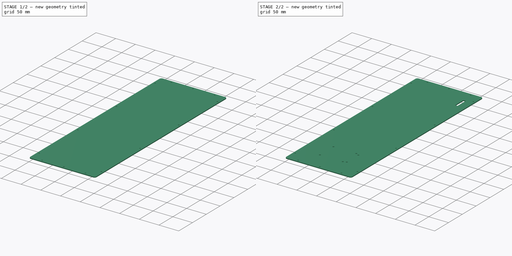
[diagram: build sequence overview — one tinted view per stage of 2, left to right]
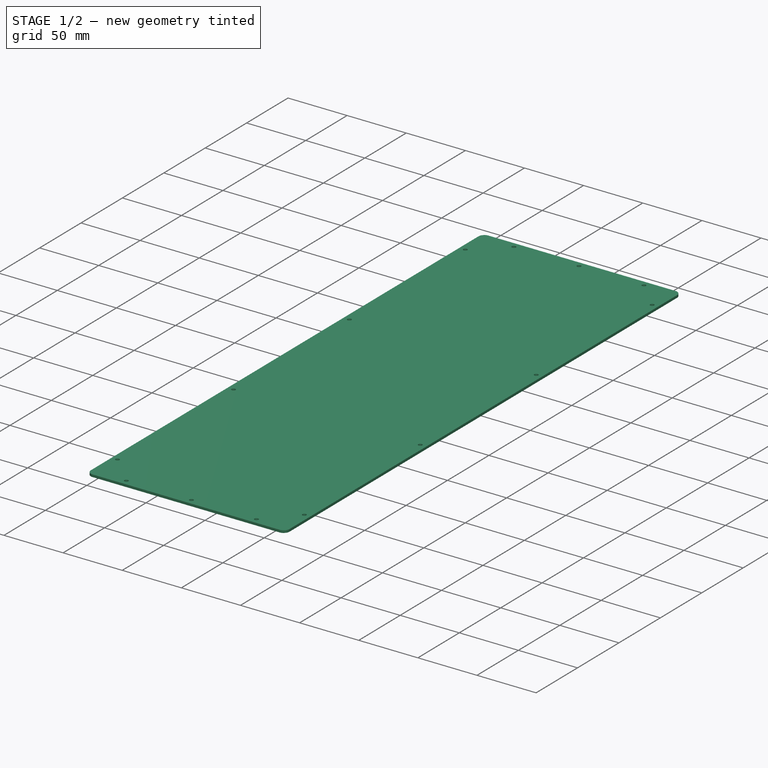
[diagram: stage 1 of 2 — iso view after this stage's code; geometry added in this stage tinted green]
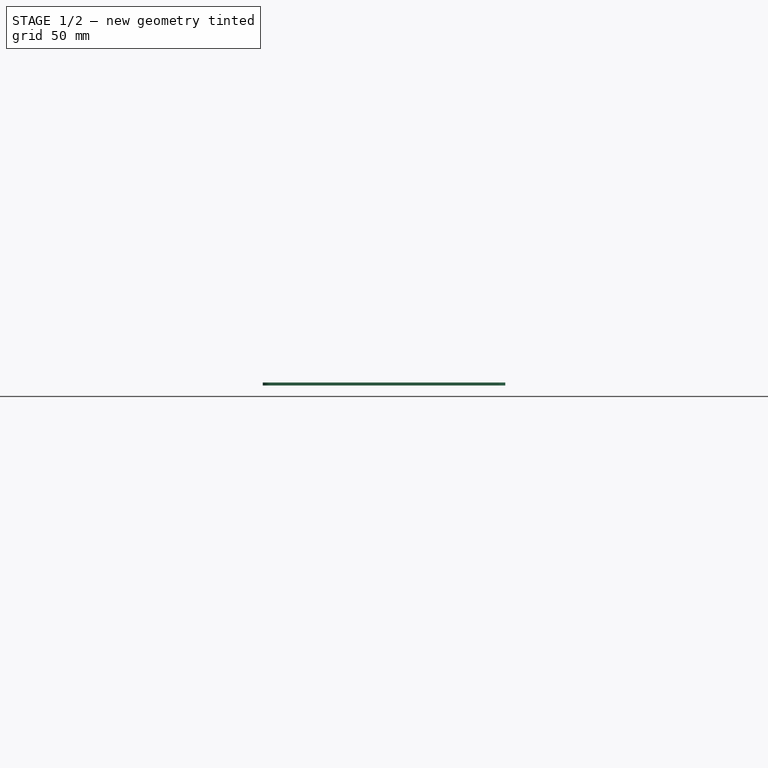
[diagram: stage 1 of 2 — front view after this stage's code; geometry added in this stage tinted green]
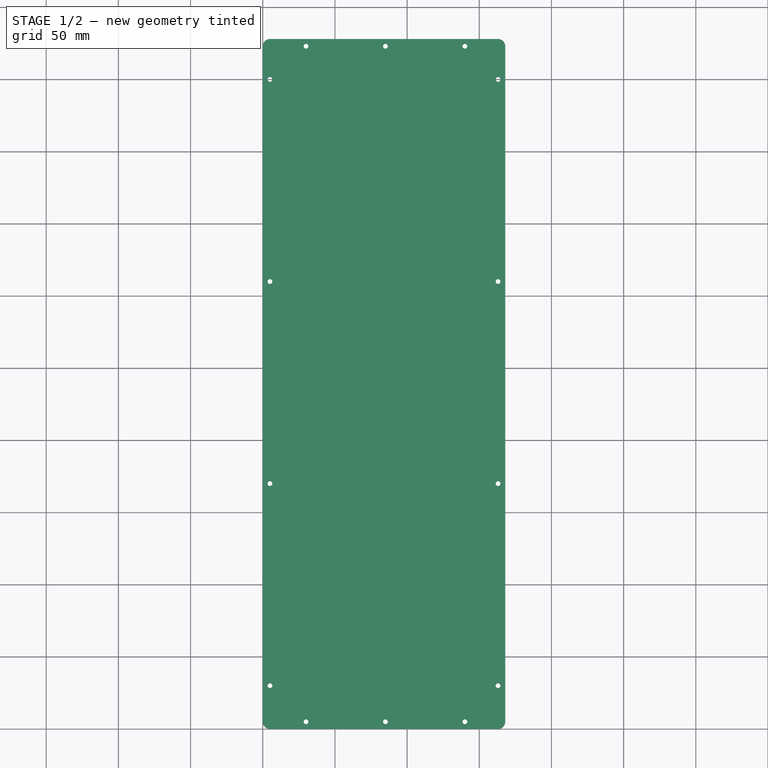
[diagram: stage 1 of 2 — top view after this stage's code; geometry added in this stage tinted green]
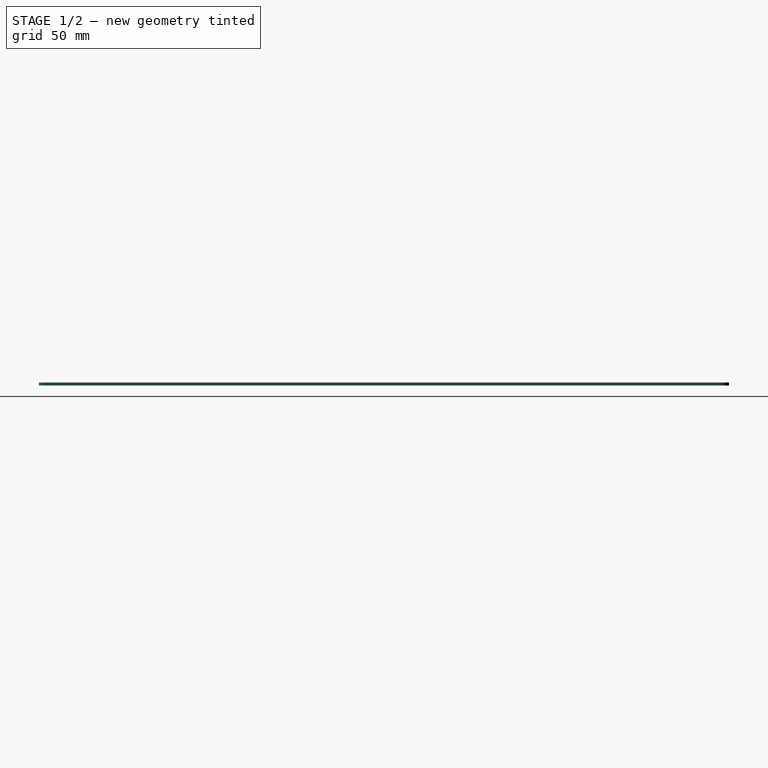
[diagram: stage 1 of 2 — right view after this stage's code; geometry added in this stage tinted green]
FCSTD DOCUMENT  (FreeCAD 0.16R5861 (Git))
Label: electronics_cover_v04.1
License: All rights reserved
LicenseURL: http://en.wikipedia.org/wiki/All_rights_reserved
objects: Drawing::FeatureView×57, Sketcher::SketchObject×4, PartDesign::Pocket×3, Drawing::FeatureViewPart×2, PartDesign::Pad×1, Drawing::FeaturePage×1
note: 12 computed .brp shape members not serialized (recipe doc carries the construction recipe); baked Part::Feature solids carry a one-line shape summary decoded from their .brp

FEATURE [Sketcher::SketchObject] Sketch
  sketch-geometry (8):
    g0: LineSegment StartX=5 StartY=478 StartZ=0 EndX=163 EndY=478 EndZ=0
    g1: LineSegment StartX=168 StartY=473 StartZ=0 EndX=168 EndY=5 EndZ=0
    g2: LineSegment StartX=163 StartY=0 StartZ=0 EndX=5 EndY=0 EndZ=0
    g3: LineSegment StartX=0 StartY=5 StartZ=0 EndX=0 EndY=473 EndZ=0
    g4: ArcOfCircle CenterX=5 CenterY=473 CenterZ=0 NormalX=0 NormalY=0 NormalZ=1 Radius=5 StartAngle=1.5708 EndAngle=3.14159
    g5: ArcOfCircle CenterX=163 CenterY=473 CenterZ=0 NormalX=0 NormalY=0 NormalZ=1 Radius=5 StartAngle=0 EndAngle=1.5708
    g6: ArcOfCircle CenterX=163 CenterY=5 CenterZ=0 NormalX=0 NormalY=0 NormalZ=1 Radius=5 StartAngle=4.71239 EndAngle=6.28319
    g7: ArcOfCircle CenterX=5 CenterY=5 CenterZ=0 NormalX=0 NormalY=0 NormalZ=1 Radius=5 StartAngle=3.14159 EndAngle=4.71239
  constraints (20):
    c: Horizontal(g0)
    c: Horizontal(g2)
    c: Vertical(g1)
    c: Vertical(g3)
    c: Tangent(g0,g4) = 1.5708
    c: Tangent(g3,g4) = 1.5708
    c: Radius(g4) = 5
    c: Tangent(g1,g5) = 1.5708
    c: Tangent(g0,g5) = 1.5708
    c: DistanceY(g-1,g0) = 478
    c: DistanceX(g1,g3) = -168
    c: Equal(g4,g5)
    c: Tangent(g1,g6) = 1.5708
    c: Tangent(g2,g6) = 1.5708
    c: Radius(g6) = 5
    c: Tangent(g3,g7) = 1.5708
    c: Tangent(g2,g7) = 1.5708
    c: Equal(g6,g7)
    c: PointOnObject(g-1,g3)
    c: PointOnObject(g-1,g2)
FEATURE [PartDesign::Pad] Pad
  Length = 2.03
  Length2 = 100
  Sketch = -> Sketch
  Type = 0
FEATURE [Sketcher::SketchObject] Sketch001
  ExternalGeometry = -> [Pad]
  Placement = pos=(0,0,2.03) rot=(0,0,1;0rad)
  Support = -> Pad [Face10]
  sketch-geometry (25):
    g0: LineSegment [constr] StartX=30 StartY=473 StartZ=0 EndX=140 EndY=473 EndZ=0
    g1: LineSegment [constr] StartX=140 StartY=473 StartZ=0 EndX=140 EndY=5 EndZ=0
    g2: LineSegment [constr] StartX=140 StartY=5 StartZ=0 EndX=30 EndY=5 EndZ=0
    g3: LineSegment [constr] StartX=30 StartY=5 StartZ=0 EndX=30 EndY=473 EndZ=0
    g4: Circle CenterX=140 CenterY=5 CenterZ=0 NormalX=0 NormalY=0 NormalZ=1 Radius=1.65
    g5: Circle CenterX=30 CenterY=5 CenterZ=0 NormalX=0 NormalY=0 NormalZ=1 Radius=1.65
    g6: LineSegment [constr] StartX=85 StartY=473 StartZ=0 EndX=85 EndY=5 EndZ=0
    g7: Circle CenterX=85 CenterY=5 CenterZ=0 NormalX=0 NormalY=0 NormalZ=1 Radius=1.65
    g8: LineSegment [constr] StartX=5 StartY=450 StartZ=0 EndX=163 EndY=450 EndZ=0
    g9: LineSegment [constr] StartX=163 StartY=450 StartZ=0 EndX=163 EndY=30 EndZ=0
    g10: LineSegment [constr] StartX=163 StartY=30 StartZ=0 EndX=5 EndY=30 EndZ=0
    g11: LineSegment [constr] StartX=5 StartY=30 StartZ=0 EndX=5 EndY=450 EndZ=0
    g12: LineSegment [constr] StartX=5 StartY=310 StartZ=0 EndX=163 EndY=310 EndZ=0
    g13: LineSegment [constr] StartX=5 StartY=170 StartZ=0 EndX=163 EndY=170 EndZ=0
    g14: Circle CenterX=5 CenterY=30 CenterZ=0 NormalX=0 NormalY=0 NormalZ=1 Radius=1.65
    g15: Circle CenterX=163 CenterY=30 CenterZ=0 NormalX=0 NormalY=0 NormalZ=1 Radius=1.65
    g16: Circle CenterX=163 CenterY=170 CenterZ=0 NormalX=0 NormalY=0 NormalZ=1 Radius=1.65
    g17: Circle CenterX=163 CenterY=310 CenterZ=0 NormalX=0 NormalY=0 NormalZ=1 Radius=1.65
    g18: Circle CenterX=5 CenterY=310 CenterZ=0 NormalX=0 NormalY=0 NormalZ=1 Radius=1.65
    g19: Circle CenterX=5 CenterY=170 CenterZ=0 NormalX=0 NormalY=0 NormalZ=1 Radius=1.65
    g20: Circle CenterX=5 CenterY=450 CenterZ=0 NormalX=0 NormalY=0 NormalZ=1 Radius=1.65
    g21: Circle CenterX=30 CenterY=473 CenterZ=0 NormalX=0 NormalY=0 NormalZ=1 Radius=1.65
    g22: Circle CenterX=85 CenterY=473 CenterZ=0 NormalX=0 NormalY=0 NormalZ=1 Radius=1.65
    g23: Circle CenterX=140 CenterY=473 CenterZ=0 NormalX=0 NormalY=0 NormalZ=1 Radius=1.65
    g24: Circle CenterX=163 CenterY=450 CenterZ=0 NormalX=0 NormalY=0 NormalZ=1 Radius=1.65
  constraints (64):
    c: Coincident(g1,g0)
    c: Coincident(g3,g0)
    c: Coincident(g2,g1)
    c: Coincident(g2,g3)
    c: Coincident(g8,g9)
    c: Coincident(g11,g8)
    c: Coincident(g10,g9)
    c: Coincident(g11,g10)
    c: Horizontal(g0)
    c: Horizontal(g8)
    c: Horizontal(g2)
    c: Horizontal(g10)
    c: Horizontal(g13)
    c: Horizontal(g12)
    c: Vertical(g11)
    c: Vertical(g3)
    c: Vertical(g6)
    c: Vertical(g1)
    c: Vertical(g9)
    c: DistanceY(g-1,g2) = 5
    c: DistanceX(g-1,g2) = 30
    c: Coincident(g2,g5)
    c: DistanceX(g-1,g1) = 140
    c: DistanceX(g-1,g6) = 85
    c: Coincident(g6,g7)
    c: Coincident(g1,g4)
    c: DistanceX(g-1,g10) = 5
    c: DistanceY(g-1,g10) = 30
    c: Coincident(g9,g15)
    c: Coincident(g10,g14)
    c: DistanceY(g10,g13) = 140
    c: DistanceY(g13,g12) = 140
    c: DistanceY(g12,g8) = 140
    c: Coincident(g13,g16)
    c: Coincident(g13,g19)
    c: Coincident(g12,g18)
    c: Coincident(g12,g17)
    c: PointOnObject(g6,g0)
    c: Coincident(g8,g24)
    c: Coincident(g0,g23)
    c: Coincident(g6,g22)
    c: Coincident(g0,g21)
    c: Coincident(g8,g20)
    c: Radius(g5) = 1.65
    c: Equal(g5,g14)
    c: Equal(g14,g7)
    c: Equal(g7,g4)
    c: Equal(g4,g15)
    c: Equal(g15,g16)
    c: Equal(g16,g19)
    c: Equal(g19,g18)
    c: Equal(g18,g17)
    c: Equal(g17,g24)
    c: Equal(g24,g23)
    c: Equal(g23,g22)
    c: Equal(g22,g21)
    c: Equal(g21,g20)
    c: PointOnObject(g6,g2)
    c: PointOnObject(g13,g9)
    c: PointOnObject(g13,g11)
    c: PointOnObject(g12,g11)
    c: PointOnObject(g12,g9)
    c: DistanceY(g-6,g0) = -5
    c: DistanceX(g10,g9) = 158
FEATURE [PartDesign::Pocket] Pocket
  Length = 5
  Sketch = -> Sketch001
  Type = 0
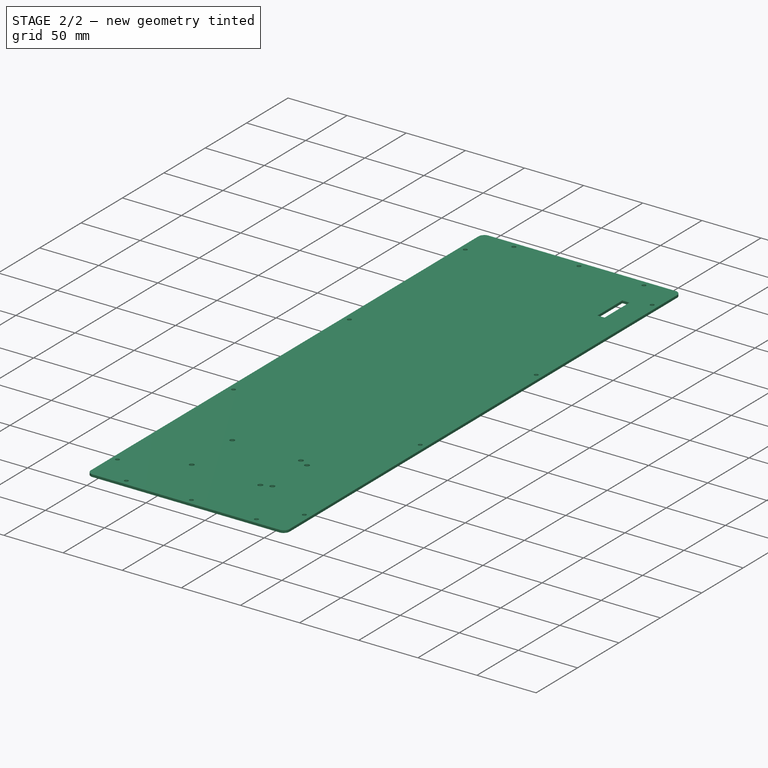
[diagram: stage 2 of 2 — iso view after this stage's code; geometry added in this stage tinted green]
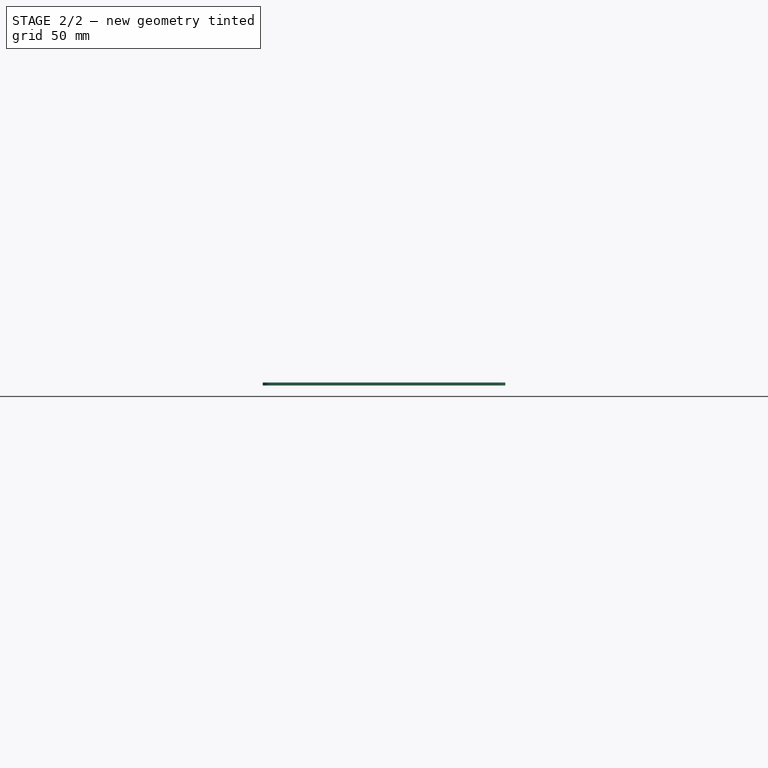
[diagram: stage 2 of 2 — front view after this stage's code; geometry added in this stage tinted green]
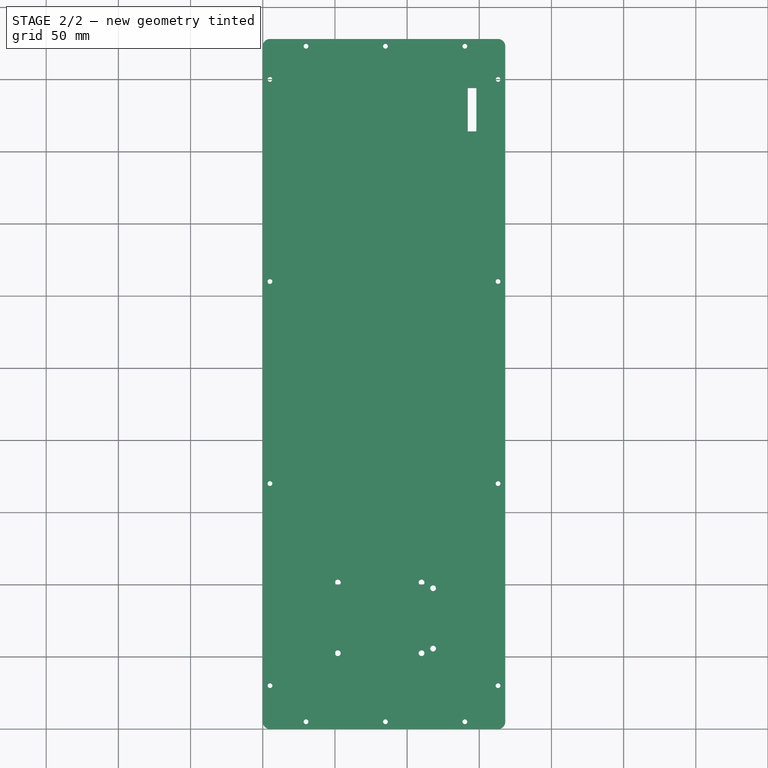
[diagram: stage 2 of 2 — top view after this stage's code; geometry added in this stage tinted green]
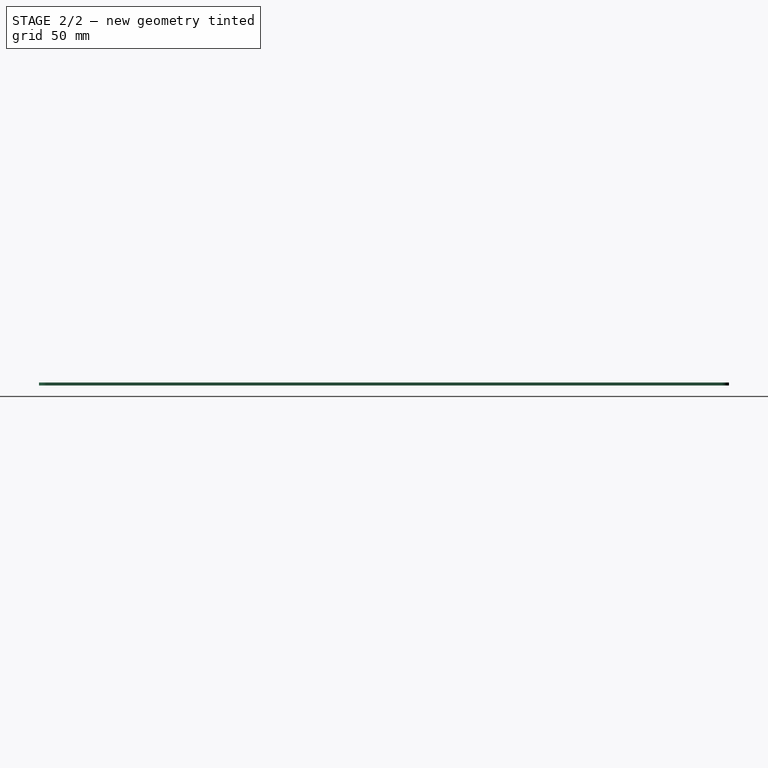
[diagram: stage 2 of 2 — right view after this stage's code; geometry added in this stage tinted green]
FEATURE [Sketcher::SketchObject] Sketch002
  Placement = pos=(0,0,2.03) rot=(0,0,1;0rad)
  Support = -> Pocket [Face5]
  sketch-geometry (4):
    g0: LineSegment StartX=142 StartY=444 StartZ=0 EndX=148 EndY=444 EndZ=0
    g1: LineSegment StartX=148 StartY=444 StartZ=0 EndX=148 EndY=414 EndZ=0
    g2: LineSegment StartX=148 StartY=414 StartZ=0 EndX=142 EndY=414 EndZ=0
    g3: LineSegment StartX=142 StartY=414 StartZ=0 EndX=142 EndY=444 EndZ=0
  constraints (12):
    c: Coincident(g0,g1)
    c: Coincident(g1,g2)
    c: Coincident(g2,g3)
    c: Coincident(g3,g0)
    c: Horizontal(g0)
    c: Horizontal(g2)
    c: Vertical(g1)
    c: Vertical(g3)
    c: DistanceY(g-1,g1) = 414
    c: DistanceY(g1) = -30
    c: DistanceX(g0) = 6
    c: DistanceX(g-1,g2) = 142
FEATURE [PartDesign::Pocket] Pocket001
  Length = 5
  Sketch = -> Sketch002
  Type = 0
FEATURE [Sketcher::SketchObject] Sketch004
  Placement = pos=(0,0,2.03) rot=(0,0,1;0rad)
  Support = -> Pocket001 [Face5]
  sketch-geometry (18):
    g0: LineSegment [constr] StartX=52 StartY=52.5 StartZ=0 EndX=110 EndY=52.5 EndZ=0
    g1: LineSegment [constr] StartX=110 StartY=52.5 StartZ=0 EndX=110 EndY=101.5 EndZ=0
    g2: LineSegment [constr] StartX=110 StartY=101.5 StartZ=0 EndX=52 EndY=101.5 EndZ=0
    g3: LineSegment [constr] StartX=52 StartY=101.5 StartZ=0 EndX=52 EndY=52.5 EndZ=0
    g4: Circle [constr] CenterX=52 CenterY=52.5 CenterZ=0 NormalX=0 NormalY=0 NormalZ=1 Radius=2
    g5: Circle [constr] CenterX=52 CenterY=101.5 CenterZ=0 NormalX=0 NormalY=0 NormalZ=1 Radius=2
    g6: Circle CenterX=118 CenterY=97.5 CenterZ=0 NormalX=0 NormalY=0 NormalZ=1 Radius=2
    g7: Circle CenterX=118 CenterY=55.675 CenterZ=0 NormalX=0 NormalY=0 NormalZ=1 Radius=2
    g8: LineSegment [constr] StartX=52 StartY=101.5 StartZ=0 EndX=52 EndY=52.5 EndZ=0
    g9: LineSegment [constr] StartX=118 StartY=55.675 StartZ=0 EndX=118 EndY=97.5 EndZ=0
    g10: Circle CenterX=52 CenterY=52.5 CenterZ=0 NormalX=0 NormalY=0 NormalZ=1 Radius=2
    g11: Circle CenterX=52 CenterY=101.5 CenterZ=0 NormalX=0 NormalY=0 NormalZ=1 Radius=2
    g12: Circle CenterX=110 CenterY=101.5 CenterZ=0 NormalX=0 NormalY=0 NormalZ=1 Radius=2
    g13: Circle CenterX=110 CenterY=52.5 CenterZ=0 NormalX=0 NormalY=0 NormalZ=1 Radius=2
    g14: LineSegment [constr] StartX=2.5 StartY=114 StartZ=0 EndX=52 EndY=101.5 EndZ=0
    g15: LineSegment [constr] StartX=52 StartY=101.5 StartZ=0 EndX=2.5 EndY=89 EndZ=0
    g16: LineSegment [constr] StartX=167.5 StartY=110 StartZ=0 EndX=118 EndY=97.5 EndZ=0
    g17: LineSegment [constr] StartX=118 StartY=97.5 StartZ=0 EndX=167.5 EndY=85 EndZ=0
  constraints (30):
    c: Coincident(g0,g1)
    c: Coincident(g3,g0)
    c: Coincident(g1,g2)
    c: Coincident(g2,g3)
    c: Coincident(g2,g8)
    c: Coincident(g2,g14)
    c: Coincident(g2,g15)
    c: Coincident(g3,g8)
    c: Coincident(g9,g16)
    c: Coincident(g9,g17)
    c: Distance(g-1,g0) = 52.5
    c: Distance(g-1,g3) = 52
    c: DistanceX(g0) = 58
    c: DistanceY(g3) = -49
    c: Radius(g4) = 2
    c: Equal(g4,g5)
    c: Equal(g5,g12)
    c: Equal(g12,g13)
    c: Equal(g13,g7)
    c: Equal(g7,g6)
    c: DistanceY(g-1,g7) = 55.675
    c: DistanceY(g9) = 41.825
    c: Distance(g-1,g9) = 118
    c: Coincident(g7,g9)
    c: Coincident(g6,g9)
    c: Coincident(g1,g12)
    c: Coincident(g2,g5)
    c: Coincident(g2,g11)
    c: Coincident(g0,g4)
    c: Coincident(g0,g10)
FEATURE [PartDesign::Pocket] Pocket002
  Length = 5
  Sketch = -> Sketch004
  Type = 0
FEATURE [Drawing::FeatureView] dimText004
  Rotation = 0
  ViewResult = <g> <text x="213.000000" y="48.000000" font-family="inherit" font-size="3" fill="rgb(0,0,0)" text-anchor="inherit" transform="rotate(0.000000 213.000000,48.000000)" >2. Material: 12AWG (0.8") Aluminum.</text> </g>
  Visible = true
  X = 0
  Y = 0
FEATURE [Drawing::FeatureView] dimText002
  Rotation = 0
  ViewResult = <g> <text x="216.000000" y="36.000000" font-family="inherit" font-size="5" fill="rgb(0,0,0)" text-anchor="inherit" transform="rotate(0.000000 216.000000,36.000000)" >Notes:</text> </g>
  Visible = true
  X = 0
  Y = 0
FEATURE [Drawing::FeatureView] dim026
  Rotation = 0
  ViewResult = <g>  <circle cx ="64.172750" cy ="69.110000" r="0.500000" stroke="none" fill="rgb(0,0,255)" /> \n<line x1="65.000000" y1="40.000000" x2="64.154002" y2="69.769734" style="stroke:rgb(0,0,255);stroke-width:0.20" />\n<polygon points="64.191498,68.450266 65.026415,65.472782 64.276718,65.451477 63.527021,65.430172" style="fill:rgb(0,0,255);stroke:rgb(0,0,255);stroke-width:0" />\n<polygon points="64.154002,69.769734 63.319085,72.747218 64.068782,72.768523 64.818479,72.789828" style="fill:rgb(0,0,255);stroke:rgb(0,0,255);stroke-width:0" />\n<line x1="65.000000" y1="40.000000" x2="85.000000" y2="40.000000" style="stroke:rgb(0,0,255);stroke-width:0.20" />\n<text x="75.000000" y="38.000000" font-family="Verdana" font-size="3" fill="rgb(0,0,255)" text-anchor="middle"  >6X Ø4.0 THRU</text> </g>
  Visible = true
  X = 0
  Y = 0
FEATURE [Drawing::FeatureView] dimText006
  Rotation = 0
  ViewResult = <g> <text x="213.000000" y="60.000000" font-family="inherit" font-size="3" fill="rgb(0,0,0)" text-anchor="inherit" transform="rotate(0.000000 213.000000,60.000000)" >4. Part is to be powder coated</text> </g>
  Visible = true
  X = 0
  Y = 0
FEATURE [Drawing::FeatureView] dimText005
  Rotation = 0
  ViewResult = <g> <text x="213.000000" y="54.000000" font-family="inherit" font-size="3.0" fill="rgb(0,0,0)" text-anchor="inherit"  >3. Break all sharp edges prior to coating.</text> </g>
  Visible = true
  X = 0
  Y = 0
FEATURE [Drawing::FeatureView] dimText009
  Rotation = 0
  ViewResult = <g> <text x="217.909644" y="76.059212" font-family="inherit" font-size="3" fill="rgb(0,0,0)" text-anchor="inherit" transform="rotate(0.000000 217.909644,76.059212)" >exceed 0.08mm</text> </g>
  Visible = true
  X = 0
  Y = 0
FEATURE [Drawing::FeatureView] dim012
  Rotation = 0
  ViewResult = <g> \n  <line x1="44.625000" y1="19.665000" x2="38.738699" y2="19.665000" style="stroke:rgb(0,0,255);stroke-width:0.20" />\n<line x1="44.625000" y1="20.334900" x2="38.738699" y2="20.334900" style="stroke:rgb(0,0,255);stroke-width:0.20" />\n<line x1="39.738699" y1="19.665000" x2="39.738699" y2="20.334900" style="stroke:rgb(0,0,255);stroke-width:0.20" /> \n  <polygon points="39.738699,20.334900 38.988699,23.334900 39.738699,23.334900 40.488699,23.334900" style="fill:rgb(0,0,255);stroke:rgb(0,0,255);stroke-width:0" /><polygon points="39.738699,19.665000 40.488699,16.665000 39.738699,16.665000 38.988699,16.665000" style="fill:rgb(0,0,255);stroke:rgb(0,0,255);stroke-width:0" /> \n  <text x="38.738699" y="19.999950" font-family="Verdana" font-size="3" fill="rgb(0,0,255)" text-anchor="middle" transform="rotate(-90.000000 38.738699,19.999950)" >2.03</text> </g>
  Visible = true
  X = 0
  Y = 0
FEATURE [Drawing::FeatureViewPart] Ortho001  label="Ortho_0_-1"
  Direction = (0,0,-1)
  HiddenWidth = 0.15
  LineWidth = 0.35
  Rotation = 90
  Scale = 0.33
  ShowHiddenLines = false
  ShowSmoothLines = false
  Source = -> Pocket002
  Tolerance = 0.05
  ViewResult = <g id="Ortho_0_-1"\n   transform="rotate(90,45.8,108.05) translate(45.8,108.05) scale(0.33,0.33)"\n  >\n<g   stroke="rgb(0, 0, 0)"\n   stroke-width="1.06061"\n   stroke-linecap="butt"\n   stroke-linejoin="miter"\n   fill="none"\n   transform="scale(1,-1)"\n  >\n<path id= "1" d=" M -4.84699e-24 5 L -4.84699e-24 473 " />\n<path d="M0 5 A5 5 0 0 0 -5 0" /><path d="M-5 478 A5 5 0 0 0 0 473" /><path id= "4" d=" M -163 0 L -5 0 " />\n<path id= "5" d=" M -5 478 L -163 478 " />\n<path d="M-163 0 A5 5 0 0 0 -168 5" /><path d="M-168 473 A5 5 0 0 0 -163 478" /><path id= "8" d=" M -168 473 L -168 5 " />\n<circle cx ="-140" cy ="5" r ="1.65" /><circle cx ="-5" cy ="30" r ="1.65" /><circle cx ="-5" cy ="310" r ="1.65" /><circle cx ="-163" cy ="170" r ="1.65" /><circle cx ="-163" cy ="450" r ="1.65" /><circle cx ="-5" cy ="450" r ="1.65" /><circle cx ="-5" cy ="170" r ="1.65" /><circle cx ="-85" cy ="5" r ="1.65" /><circle cx ="-30" cy ="5" r ="1.65" /><circle cx ="-163" cy ="310" r ="1.65" /><circle cx ="-163" cy ="30" r ="1.65" /><circle cx ="-30" cy ="473" r ="1.65" /><circle cx ="-140" cy ="473" r ="1.65" /><circle cx ="-85" cy ="473" r ="1.65" /><path id= "23" d=" M -148 444 L -148 414 " />\n<path id= "24" d=" M -142 444 L -148 444 " />\n<path id= "25" d=" M -148 414 L -142 414 " />\n<path id= "26" d=" M -142 414 L -142 444 " />\n<circle cx ="-52" cy ="101.5" r ="2" /><circle cx ="-110" cy ="101.5" r ="2" /><circle cx ="-118" cy ="97.5" r ="2" /><circle cx ="-118" cy ="55.675" r ="2" /><circle cx ="-52" cy ="52.5" r ="2" /><circle cx ="-110" cy ="52.5" r ="2" /></g>\n</g>
  Visible = true
  X = 45.8
  Y = 108.05
FEATURE [Drawing::FeatureViewPart] Ortho  label="Ortho_0_0"
  Direction = (1,0,0)
  HiddenWidth = 0.15
  LineWidth = 0.35
  Rotation = -90
  Scale = 0.33
  ShowHiddenLines = false
  ShowSmoothLines = false
  Source = -> Pocket002
  Tolerance = 0.05
  ViewResult = <g id="Ortho_0_0"\n   transform="rotate(-90,45.8,20.3349) translate(45.8,20.3349) scale(0.33,0.33)"\n  >\n<g   stroke="rgb(0, 0, 0)"\n   stroke-width="1.06061"\n   stroke-linecap="butt"\n   stroke-linejoin="miter"\n   fill="none"\n   transform="scale(1,-1)"\n  >\n<path d="M0,0 L0,-0.031439  L0,-0.12536  L0,-0.280583  L0,-0.495156  L0,-0.766379  L0,-1.09084  L0,-1.46447  L0,-1.88255  L0,-2.33984  L0,-2.83058  L0,-3.3486  L0,-3.8874  L0,-4.44018  L0,-5 " /><path d="M0,-473 L0,-473.56  L0,-474.113  L0,-474.651  L0,-475.169  L0,-475.66  L0,-476.117  L0,-476.536  L0,-476.909  L0,-477.234  L0,-477.505  L0,-477.719  L0,-477.875  L0,-477.969  L0,-478 " /><path id= "3" d=" M 0 -473 L 0 -5 " />\n<path d="M2.03,0 L2.03,-0.031439  L2.03,-0.12536  L2.03,-0.280583  L2.03,-0.495156  L2.03,-0.766379  L2.03,-1.09084  L2.03,-1.46447  L2.03,-1.88255  L2.03,-2.33984  L2.03,-2.83058  L2.03,-3.3486  L2.03,-3.8874  L2.03,-4.44018  L2.03,-5 " /><path d="M2.03,-473 L2.03,-473.56  L2.03,-474.113  L2.03,-474.651  L2.03,-475.169  L2.03,-475.66  L2.03,-476.117  L2.03,-476.536  L2.03,-476.909  L2.03,-477.234  L2.03,-477.505  L2.03,-477.719  L2.03,-477.875  L2.03,-477.969  L2.03,-478 " /><path id= "6" d=" M 2.03 -473 L 2.03 -5 " />\n<path id= "7" d=" M 0 0 L 2.03 0 " />\n<path id= "8" d=" M 0 -478 L 2.03 -478 " />\n</g>\n</g>
  Visible = true
  X = 45.8
  Y = 20.3349
FEATURE [Drawing::FeatureView] dim028
  Rotation = 0
  ViewResult = <g>  <circle cx ="101.900000" cy ="53.930000" r="0.500000" stroke="none" fill="rgb(0,0,255)" /> \n<line x1="116.475502" y1="35.899213" x2="101.350241" y2="54.610085" style="stroke:rgb(0,0,255);stroke-width:0.20" />\n<polygon points="102.449759,53.249915 104.918986,51.388353 104.335723,50.916862 103.752460,50.445370" style="fill:rgb(0,0,255);stroke:rgb(0,0,255);stroke-width:0" />\n<polygon points="101.350241,54.610085 98.881014,56.471647 99.464277,56.943138 100.047540,57.414630" style="fill:rgb(0,0,255);stroke:rgb(0,0,255);stroke-width:0" />\n<line x1="116.475502" y1="35.899213" x2="146.297732" y2="35.899213" style="stroke:rgb(0,0,255);stroke-width:0.20" />\n<text x="131.386617" y="33.899213" font-family="Verdana" font-size="3" fill="rgb(0,0,255)" text-anchor="middle"  >14X Ø3.4 THRU</text> </g>
  Visible = true
  X = 0
  Y = 0
FEATURE [Drawing::FeatureView] dim027
  Rotation = 0
  ViewResult = <g>  <circle cx ="48.275000" cy ="54.425000" r="0.500000" stroke="none" fill="rgb(0,0,255)" /> \n<line x1="40.389357" y1="43.456903" x2="48.275000" y2="54.425000" style="stroke:rgb(0,0,255);stroke-width:0.20" />\n<polygon points="47.311813,53.085309 46.169515,50.211696 45.560565,50.649508 44.951615,51.087320" style="fill:rgb(0,0,255);stroke:rgb(0,0,255);stroke-width:0" />\n<line x1="40.389357" y1="43.456903" x2="26.329771" y2="43.456903" style="stroke:rgb(0,0,255);stroke-width:0.20" />\n<text x="33.359564" y="41.456903" font-family="Verdana" font-size="3" fill="rgb(0,0,255)" text-anchor="middle"  >4X R5.0</text> </g>
  Visible = true
  X = 0
  Y = 0
FEATURE [Drawing::FeatureView] dimText003
  Rotation = 0
  ViewResult = <g> <text x="213.000000" y="42.000000" font-family="inherit" font-size="3" fill="rgb(0,0,0)" text-anchor="inherit" transform="rotate(0.000000 213.000000,42.000000)" >1. Parts must be RoHS compliant.</text> </g>
  Visible = true
  X = 0
  Y = 0
FEATURE [Drawing::FeatureView] dimText008
  Rotation = 0
  ViewResult = <g> <text x="217.529348" y="71.115364" font-family="inherit" font-size="3" fill="rgb(0,0,0)" text-anchor="inherit"  >Coating thickness not to</text> </g>
  Visible = true
  X = 0
  Y = 0
FEATURE [Drawing::FeatureView] dimText011
  Rotation = 0
  ViewResult = <g> <text x="217.461788" y="86.684768" font-family="inherit" font-size="3" fill="rgb(0,0,0)" text-anchor="inherit" transform="rotate(0.000000 217.461788,86.684768)" >shown on print.</text> </g>
  Visible = true
  X = 0
  Y = 0
FEATURE [Drawing::FeatureView] dimText007
  Rotation = 0
  ViewResult = <g> <text x="216.958904" y="65.410923" font-family="inherit" font-size="3" fill="rgb(0,0,0)" text-anchor="inherit"  >with Cardinal color C241-BK109.</text> </g>
  Visible = true
  X = 0
  Y = 0
FEATURE [Drawing::FeatureView] dimText010
  Rotation = 0
  ViewResult = <g> <text x="213.562473" y="81.585664" font-family="inherit" font-size="3" fill="rgb(0,0,0)" text-anchor="inherit"  >5. 3D model governs dimensions not</text> </g>
  Visible = true
  X = 0
  Y = 0
FEATURE [Drawing::FeatureView] centerLines005
  Rotation = 0
  ViewResult = <g transform="scale(0.330000,0.330000)" stroke="rgb(0,0,255)"  stroke-width="0.909091" > <path d="M 191.287879,217.424242 L 191.287879,218.426102 "/>\n<path d="M 191.287879,217.424242 L 197.348485,217.424242 M 203.409091,217.424242 L 221.590909,217.424242 M 227.651515,217.424242 L 233.712121,217.424242 M 239.772727,217.424242 L 240.017647,217.424242 "/>\n<path d="M 191.287879,217.424242 L 191.287879,223.484848 M 191.287879,229.545455 L 191.287879,247.727273 M 191.287879,253.787879 L 191.287879,259.848485 M 191.287879,265.909091 L 191.287879,274.915611 "/>\n<path d="M 191.287879,217.424242 L 191.311137,217.424242 "/> </g> 
  Visible = true
  X = 0
  Y = 0
FEATURE [Drawing::FeatureView] centerLines006
  Rotation = 0
  ViewResult = <g transform="scale(0.330000,0.330000)" stroke="rgb(0,0,255)"  stroke-width="0.909091" > <path d="M 240.287879,275.424242 L 240.287879,269.363636 M 240.287879,263.303030 L 240.287879,245.121212 M 240.287879,239.060606 L 240.287879,233.000000 M 240.287879,226.939394 L 240.287879,216.668650 "/>\n<path d="M 240.287879,275.424242 L 240.268712,275.424242 "/>\n<path d="M 240.287879,275.424242 L 240.287879,274.664546 "/>\n<path d="M 240.287879,275.424242 L 234.227273,275.424242 M 228.166667,275.424242 L 209.984848,275.424242 M 203.924242,275.424242 L 197.863636,275.424242 M 191.803030,275.424242 L 191.060073,275.424242 "/> </g> 
  Visible = true
  X = 0
  Y = 0
FEATURE [Drawing::FeatureView] dim001
  Rotation = 0
  ViewResult = <g> <line x1="45.800000" y1="108.400000" x2="45.800000" y2="118.435505" style="stroke:rgb(0,0,255);stroke-width:0.20" />\n<line x1="55.700000" y1="107.525553" x2="55.700000" y2="118.435505" style="stroke:rgb(0,0,255);stroke-width:0.20" />\n<line x1="45.800000" y1="117.435505" x2="55.700000" y2="117.435505" style="stroke:rgb(0,0,255);stroke-width:0.20" />\n<polygon points="45.800000,117.435505 48.800000,118.185505 48.800000,117.435505 48.800000,116.685505" style="fill:rgb(0,0,255);stroke:rgb(0,0,255);stroke-width:0" />\n<polygon points="55.700000,117.435505 52.700000,116.685505 52.700000,117.435505 52.700000,118.185505" style="fill:rgb(0,0,255);stroke:rgb(0,0,255);stroke-width:0" />\n<text x="50.750000" y="116.435505" font-family="Verdana" font-size="3.6" fill="rgb(0,0,255)" text-anchor="middle" transform="rotate(0.000000 50.750000,116.435505)" >30</text> </g> 
  Visible = true
  X = 0
  Y = 0
FEATURE [Drawing::FeatureView] dim003
  Rotation = 0
  ViewResult = <g> <line x1="45.800000" y1="108.400000" x2="45.800000" y2="124.307280" style="stroke:rgb(0,0,255);stroke-width:0.20" />\n<line x1="63.125000" y1="93.550053" x2="63.125000" y2="124.307280" style="stroke:rgb(0,0,255);stroke-width:0.20" />\n<line x1="45.800000" y1="123.307280" x2="63.125000" y2="123.307280" style="stroke:rgb(0,0,255);stroke-width:0.20" />\n<polygon points="45.800000,123.307280 48.800000,124.057280 48.800000,123.307280 48.800000,122.557280" style="fill:rgb(0,0,255);stroke:rgb(0,0,255);stroke-width:0" />\n<polygon points="63.125000,123.307280 60.125000,122.557280 60.125000,123.307280 60.125000,124.057280" style="fill:rgb(0,0,255);stroke:rgb(0,0,255);stroke-width:0" />\n<text x="54.462500" y="122.307280" font-family="Verdana" font-size="3.6" fill="rgb(0,0,255)" text-anchor="middle" transform="rotate(0.000000 54.462500,122.307280)" >52.5</text> </g> 
  Visible = true
  X = 0
  Y = 0
FEATURE [Drawing::FeatureView] dim004
  Rotation = 0
  ViewResult = <g> <line x1="45.800000" y1="108.400000" x2="45.800000" y2="130.404893" style="stroke:rgb(0,0,255);stroke-width:0.20" />\n<line x1="64.172750" y1="70.450053" x2="64.172750" y2="130.404893" style="stroke:rgb(0,0,255);stroke-width:0.20" />\n<line x1="45.800000" y1="129.404893" x2="64.172750" y2="129.404893" style="stroke:rgb(0,0,255);stroke-width:0.20" />\n<polygon points="45.800000,129.404893 48.800000,130.154893 48.800000,129.404893 48.800000,128.654893" style="fill:rgb(0,0,255);stroke:rgb(0,0,255);stroke-width:0" />\n<polygon points="64.172750,129.404893 61.172750,128.654893 61.172750,129.404893 61.172750,130.154893" style="fill:rgb(0,0,255);stroke:rgb(0,0,255);stroke-width:0" />\n<text x="54.986375" y="128.404893" font-family="Verdana" font-size="3.6" fill="rgb(0,0,255)" text-anchor="middle" transform="rotate(0.000000 54.986375,128.404893)" >55.675</text> </g> 
  Visible = true
  X = 0
  Y = 0
FEATURE [Drawing::FeatureView] dim005
  Rotation = 0
  ViewResult = <g> <line x1="45.800000" y1="108.400000" x2="45.800000" y2="136.050831" style="stroke:rgb(0,0,255);stroke-width:0.20" />\n<line x1="79.295000" y1="92.230053" x2="79.295000" y2="136.050831" style="stroke:rgb(0,0,255);stroke-width:0.20" />\n<line x1="45.800000" y1="135.050831" x2="79.295000" y2="135.050831" style="stroke:rgb(0,0,255);stroke-width:0.20" />\n<polygon points="45.800000,135.050831 48.800000,135.800831 48.800000,135.050831 48.800000,134.300831" style="fill:rgb(0,0,255);stroke:rgb(0,0,255);stroke-width:0" />\n<polygon points="79.295000,135.050831 76.295000,134.300831 76.295000,135.050831 76.295000,135.800831" style="fill:rgb(0,0,255);stroke:rgb(0,0,255);stroke-width:0" />\n<text x="62.547500" y="134.050831" font-family="Verdana" font-size="3.6" fill="rgb(0,0,255)" text-anchor="middle" transform="rotate(0.000000 62.547500,134.050831)" >101.5</text> </g> 
  Visible = true
  X = 0
  Y = 0
FEATURE [Drawing::FeatureView] dim006
  Rotation = 0
  ViewResult = <g> <line x1="45.800000" y1="108.400000" x2="45.800000" y2="142.600118" style="stroke:rgb(0,0,255);stroke-width:0.20" />\n<line x1="101.900000" y1="107.525553" x2="101.900000" y2="142.600118" style="stroke:rgb(0,0,255);stroke-width:0.20" />\n<line x1="45.800000" y1="141.600118" x2="101.900000" y2="141.600118" style="stroke:rgb(0,0,255);stroke-width:0.20" />\n<polygon points="45.800000,141.600118 48.800000,142.350118 48.800000,141.600118 48.800000,140.850118" style="fill:rgb(0,0,255);stroke:rgb(0,0,255);stroke-width:0" />\n<polygon points="101.900000,141.600118 98.900000,140.850118 98.900000,141.600118 98.900000,142.350118" style="fill:rgb(0,0,255);stroke:rgb(0,0,255);stroke-width:0" />\n<text x="73.850000" y="140.600118" font-family="Verdana" font-size="3.6" fill="rgb(0,0,255)" text-anchor="middle" transform="rotate(0.000000 73.850000,140.600118)" >170</text> </g> 
  Visible = true
  X = 0
  Y = 0
FEATURE [Drawing::FeatureView] dim007
  Rotation = 0
  ViewResult = <g> <line x1="45.800000" y1="108.400000" x2="45.800000" y2="149.375244" style="stroke:rgb(0,0,255);stroke-width:0.20" />\n<line x1="148.100000" y1="107.525553" x2="148.100000" y2="149.375244" style="stroke:rgb(0,0,255);stroke-width:0.20" />\n<line x1="45.800000" y1="148.375244" x2="148.100000" y2="148.375244" style="stroke:rgb(0,0,255);stroke-width:0.20" />\n<polygon points="45.800000,148.375244 48.800000,149.125244 48.800000,148.375244 48.800000,147.625244" style="fill:rgb(0,0,255);stroke:rgb(0,0,255);stroke-width:0" />\n<polygon points="148.100000,148.375244 145.100000,147.625244 145.100000,148.375244 145.100000,149.125244" style="fill:rgb(0,0,255);stroke:rgb(0,0,255);stroke-width:0" />\n<text x="96.950000" y="147.375244" font-family="Verdana" font-size="3.6" fill="rgb(0,0,255)" text-anchor="middle" transform="rotate(0.000000 96.950000,147.375244)" >310</text> </g> 
  Visible = true
  X = 0
  Y = 0
FEATURE [Drawing::FeatureView] dim008
  Rotation = 0
  ViewResult = <g> <line x1="45.800000" y1="108.400000" x2="45.800000" y2="156.602044" style="stroke:rgb(0,0,255);stroke-width:0.20" />\n<line x1="194.300000" y1="107.525553" x2="194.300000" y2="156.602044" style="stroke:rgb(0,0,255);stroke-width:0.20" />\n<line x1="45.800000" y1="155.602044" x2="194.300000" y2="155.602044" style="stroke:rgb(0,0,255);stroke-width:0.20" />\n<polygon points="45.800000,155.602044 48.800000,156.352044 48.800000,155.602044 48.800000,154.852044" style="fill:rgb(0,0,255);stroke:rgb(0,0,255);stroke-width:0" />\n<polygon points="194.300000,155.602044 191.300000,154.852044 191.300000,155.602044 191.300000,156.352044" style="fill:rgb(0,0,255);stroke:rgb(0,0,255);stroke-width:0" />\n<text x="120.050000" y="154.602044" font-family="Verdana" font-size="3.6" fill="rgb(0,0,255)" text-anchor="middle" transform="rotate(0.000000 120.050000,154.602044)" >450</text> </g> 
  Visible = true
  X = 0
  Y = 0
FEATURE [Drawing::FeatureView] dim010
  Rotation = 0
  ViewResult = <g> <line x1="204.200000" y1="51.600000" x2="204.200000" y2="45.798433" style="stroke:rgb(0,0,255);stroke-width:0.20" />\n<line x1="192.320000" y1="56.879947" x2="192.320000" y2="45.798433" style="stroke:rgb(0,0,255);stroke-width:0.20" />\n<line x1="204.200000" y1="46.798433" x2="192.320000" y2="46.798433" style="stroke:rgb(0,0,255);stroke-width:0.20" />\n<polygon points="204.200000,46.798433 201.200000,46.048433 201.200000,46.798433 201.200000,47.548433" style="fill:rgb(0,0,255);stroke:rgb(0,0,255);stroke-width:0" />\n<polygon points="192.320000,46.798433 195.320000,47.548433 195.320000,46.798433 195.320000,46.048433" style="fill:rgb(0,0,255);stroke:rgb(0,0,255);stroke-width:0" />\n<text x="198.260000" y="45.798433" font-family="Verdana" font-size="3.6" fill="rgb(0,0,255)" text-anchor="middle" transform="rotate(0.000000 198.260000,45.798433)" >36</text> </g> 
  Visible = true
  X = 0
  Y = 0
FEATURE [Drawing::FeatureView] dim011
  Rotation = 0
  ViewResult = <g> <line x1="192.320000" y1="56.880000" x2="192.320000" y2="45.892165" style="stroke:rgb(0,0,255);stroke-width:0.20" />\n<line x1="182.420000" y1="56.880000" x2="182.420000" y2="45.892165" style="stroke:rgb(0,0,255);stroke-width:0.20" />\n<line x1="192.320000" y1="46.892165" x2="182.420000" y2="46.892165" style="stroke:rgb(0,0,255);stroke-width:0.20" />\n<polygon points="192.320000,46.892165 189.320000,46.142165 189.320000,46.892165 189.320000,47.642165" style="fill:rgb(0,0,255);stroke:rgb(0,0,255);stroke-width:0" />\n<polygon points="182.420000,46.892165 185.420000,47.642165 185.420000,46.892165 185.420000,46.142165" style="fill:rgb(0,0,255);stroke:rgb(0,0,255);stroke-width:0" />\n<text x="187.370000" y="45.892165" font-family="Verdana" font-size="3.6" fill="rgb(0,0,255)" text-anchor="middle" transform="rotate(0.000000 187.370000,45.892165)" >30</text> </g> 
  Visible = true
  X = 0
  Y = 0
FEATURE [Drawing::FeatureView] dim014
  Rotation = 0
  ViewResult = <g> <line x1="45.450000" y1="108.050000" x2="33.016482" y2="108.050000" style="stroke:rgb(0,0,255);stroke-width:0.20" />\n<line x1="46.324345" y1="98.150000" x2="33.016482" y2="98.150000" style="stroke:rgb(0,0,255);stroke-width:0.20" />\n<line x1="34.016482" y1="108.050000" x2="34.016482" y2="98.150000" style="stroke:rgb(0,0,255);stroke-width:0.20" />\n<polygon points="34.016482,108.050000 34.766482,105.050000 34.016482,105.050000 33.266482,105.050000" style="fill:rgb(0,0,255);stroke:rgb(0,0,255);stroke-width:0" />\n<polygon points="34.016482,98.150000 33.266482,101.150000 34.016482,101.150000 34.766482,101.150000" style="fill:rgb(0,0,255);stroke:rgb(0,0,255);stroke-width:0" />\n<text x="35.193012" y="95.039952" font-family="Verdana" font-size="3.6" fill="rgb(0,0,255)" text-anchor="middle" transform="rotate(-90.000000 35.193012,95.039952)" >30</text> </g> 
  Visible = true
  X = 0
  Y = 0
FEATURE [Drawing::FeatureView] dim020
  Rotation = 0
  ViewResult = <g> <line x1="45.450000" y1="108.050000" x2="30.429053" y2="108.050000" style="stroke:rgb(0,0,255);stroke-width:0.20" />\n<line x1="61.784845" y1="90.890000" x2="30.429053" y2="90.890000" style="stroke:rgb(0,0,255);stroke-width:0.20" />\n<line x1="31.429053" y1="108.050000" x2="31.429053" y2="90.890000" style="stroke:rgb(0,0,255);stroke-width:0.20" />\n<polygon points="31.429053,108.050000 32.179053,105.050000 31.429053,105.050000 30.679053,105.050000" style="fill:rgb(0,0,255);stroke:rgb(0,0,255);stroke-width:0" />\n<polygon points="31.429053,90.890000 30.679053,93.890000 31.429053,93.890000 32.179053,93.890000" style="fill:rgb(0,0,255);stroke:rgb(0,0,255);stroke-width:0" />\n<text x="30.429053" y="99.470000" font-family="Verdana" font-size="3.6" fill="rgb(0,0,255)" text-anchor="middle" transform="rotate(-90.000000 30.429053,99.470000)" >52</text> </g> 
  Visible = true
  X = 0
  Y = 0
FEATURE [Drawing::FeatureView] dim015
  Rotation = 0
  ViewResult = <g> <line x1="45.450000" y1="108.050000" x2="26.202837" y2="108.050000" style="stroke:rgb(0,0,255);stroke-width:0.20" />\n<line x1="46.324345" y1="80.000000" x2="26.202837" y2="80.000000" style="stroke:rgb(0,0,255);stroke-width:0.20" />\n<line x1="27.202837" y1="108.050000" x2="27.202837" y2="80.000000" style="stroke:rgb(0,0,255);stroke-width:0.20" />\n<polygon points="27.202837,108.050000 27.952837,105.050000 27.202837,105.050000 26.452837,105.050000" style="fill:rgb(0,0,255);stroke:rgb(0,0,255);stroke-width:0" />\n<polygon points="27.202837,80.000000 26.452837,83.000000 27.202837,83.000000 27.952837,83.000000" style="fill:rgb(0,0,255);stroke:rgb(0,0,255);stroke-width:0" />\n<text x="26.202837" y="94.025000" font-family="Verdana" font-size="3.6" fill="rgb(0,0,255)" text-anchor="middle" transform="rotate(-90.000000 26.202837,94.025000)" >85</text> </g> 
  Visible = true
  X = 0
  Y = 0
FEATURE [Drawing::FeatureView] dim016
  Rotation = 0
  ViewResult = <g> <line x1="45.450000" y1="108.050000" x2="22.089976" y2="108.050000" style="stroke:rgb(0,0,255);stroke-width:0.20" />\n<line x1="61.784845" y1="71.750000" x2="22.089976" y2="71.750000" style="stroke:rgb(0,0,255);stroke-width:0.20" />\n<line x1="23.089976" y1="108.050000" x2="23.089976" y2="71.750000" style="stroke:rgb(0,0,255);stroke-width:0.20" />\n<polygon points="23.089976,108.050000 23.839976,105.050000 23.089976,105.050000 22.339976,105.050000" style="fill:rgb(0,0,255);stroke:rgb(0,0,255);stroke-width:0" />\n<polygon points="23.089976,71.750000 22.339976,74.750000 23.089976,74.750000 23.839976,74.750000" style="fill:rgb(0,0,255);stroke:rgb(0,0,255);stroke-width:0" />\n<text x="22.089976" y="89.900000" font-family="Verdana" font-size="3.6" fill="rgb(0,0,255)" text-anchor="middle" transform="rotate(-90.000000 22.089976,89.900000)" >110</text> </g> 
  Visible = true
  X = 0
  Y = 0
FEATURE [Drawing::FeatureView] dim017
  Rotation = 0
  ViewResult = <g> <line x1="45.450000" y1="108.050000" x2="17.611712" y2="108.050000" style="stroke:rgb(0,0,255);stroke-width:0.20" />\n<line x1="62.832595" y1="69.110000" x2="17.611712" y2="69.110000" style="stroke:rgb(0,0,255);stroke-width:0.20" />\n<line x1="18.611712" y1="108.050000" x2="18.611712" y2="69.110000" style="stroke:rgb(0,0,255);stroke-width:0.20" />\n<polygon points="18.611712,108.050000 19.361712,105.050000 18.611712,105.050000 17.861712,105.050000" style="fill:rgb(0,0,255);stroke:rgb(0,0,255);stroke-width:0" />\n<polygon points="18.611712,69.110000 17.861712,72.110000 18.611712,72.110000 19.361712,72.110000" style="fill:rgb(0,0,255);stroke:rgb(0,0,255);stroke-width:0" />\n<text x="17.611712" y="88.580000" font-family="Verdana" font-size="3.6" fill="rgb(0,0,255)" text-anchor="middle" transform="rotate(-90.000000 17.611712,88.580000)" >118</text> </g> 
  Visible = true
  X = 0
  Y = 0
FEATURE [Drawing::FeatureView] dim018
  Rotation = 0
  ViewResult = <g> <line x1="45.450000" y1="108.050000" x2="12.173855" y2="108.050000" style="stroke:rgb(0,0,255);stroke-width:0.20" />\n<line x1="46.324345" y1="61.850000" x2="12.173855" y2="61.850000" style="stroke:rgb(0,0,255);stroke-width:0.20" />\n<line x1="13.173855" y1="108.050000" x2="13.173855" y2="61.850000" style="stroke:rgb(0,0,255);stroke-width:0.20" />\n<polygon points="13.173855,108.050000 13.923855,105.050000 13.173855,105.050000 12.423855,105.050000" style="fill:rgb(0,0,255);stroke:rgb(0,0,255);stroke-width:0" />\n<polygon points="13.173855,61.850000 12.423855,64.850000 13.173855,64.850000 13.923855,64.850000" style="fill:rgb(0,0,255);stroke:rgb(0,0,255);stroke-width:0" />\n<text x="12.173855" y="84.950000" font-family="Verdana" font-size="3.6" fill="rgb(0,0,255)" text-anchor="middle" transform="rotate(-90.000000 12.173855,84.950000)" >140</text> </g> 
  Visible = true
  X = 0
  Y = 0
FEATURE [Drawing::FeatureView] dim022
  Rotation = 0
  ViewResult = <g> <line x1="194.320000" y1="58.880000" x2="207.887024" y2="58.880000" style="stroke:rgb(0,0,255);stroke-width:0.20" />\n<line x1="194.320000" y1="60.860000" x2="207.887024" y2="60.860000" style="stroke:rgb(0,0,255);stroke-width:0.20" />\n<line x1="206.887024" y1="58.880000" x2="206.887024" y2="60.860000" style="stroke:rgb(0,0,255);stroke-width:0.20" />\n<polygon points="206.887024,58.880000 207.637024,55.880000 206.887024,55.880000 206.137024,55.880000" style="fill:rgb(0,0,255);stroke:rgb(0,0,255);stroke-width:0" />\n<polygon points="206.887024,60.860000 206.137024,63.860000 206.887024,63.860000 207.637024,63.860000" style="fill:rgb(0,0,255);stroke:rgb(0,0,255);stroke-width:0" />\n<text x="208.324647" y="65.477195" font-family="Verdana" font-size="3.6" fill="rgb(0,0,255)" text-anchor="middle" transform="rotate(-90.000000 208.324647,65.477195)" >6</text> </g> 
  Visible = true
  X = 0
  Y = 0
FEATURE [Drawing::FeatureView] dimText012
  Rotation = 0
  ViewResult = <g> <text x="213.262526" y="91.783872" font-family="inherit" font-size="3" fill="rgb(0,0,0)" text-anchor="inherit"  >6. Mask entire outward facing surface</text> </g>
  Visible = true
  X = 0
  Y = 0
FEATURE [Drawing::FeatureView] dimText013
  Rotation = 0
  ViewResult = <g> <text x="217.511154" y="97.476542" font-family="inherit" font-size="3" fill="rgb(0,0,0)" text-anchor="inherit"  >shown to the left prior to powder coat</text> </g>
  Visible = true
  X = 0
  Y = 0
FEATURE [Drawing::FeatureView] dimText001
  Rotation = 0
  ViewResult = <g> <text x="7.841580" y="170.423676" font-family="inherit" font-size="5" fill="rgb(0,0,0)" text-anchor="inherit" transform="rotate(0.000000 7.841580,170.423676)" >Revision</text> </g>
  Visible = true
  X = 0
  Y = 0
FEATURE [Drawing::FeatureView] dimText014
  Rotation = 0
  ViewResult = <g> <text x="39.338594" y="170.162290" font-family="inherit" font-size="5" fill="rgb(0,0,0)" text-anchor="inherit"  >Notes</text> </g>
  Visible = true
  X = 0
  Y = 0
FEATURE [Drawing::FeatureView] dimText015
  Rotation = 0
  ViewResult = <g> <text x="15.552467" y="176.435554" font-family="inherit" font-size="4" fill="rgb(0,0,0)" text-anchor="inherit" transform="rotate(0.000000 15.552467,176.435554)" >IR</text> </g>
  Visible = true
  X = 0
  Y = 0
FEATURE [Drawing::FeatureView] dimText016
  Rotation = 0
  ViewResult = <g> <text x="39.338594" y="175.912782" font-family="inherit" font-size="4" fill="rgb(0,0,0)" text-anchor="inherit" transform="rotate(0.000000 39.338594,175.912782)" >Mangrove build release</text> </g>
  Visible = true
  X = 0
  Y = 0
FEATURE [Drawing::FeatureView] dimText017
  Rotation = 0
  ViewResult = <g> <text x="15.813853" y="183.623669" font-family="inherit" font-size="4" fill="rgb(0,0,0)" text-anchor="inherit"  >4.0</text> </g>
  Visible = true
  X = 0
  Y = 0
FEATURE [Drawing::FeatureView] dimText018
  Rotation = 0
  ViewResult = <g> <text x="39.207901" y="183.100897" font-family="inherit" font-size="4" fill="rgb(0,0,0)" text-anchor="inherit" transform="rotate(0.000000 39.207901,183.100897)" >Nutmeg build release.</text> </g>
  Visible = true
  X = 0
  Y = 0
FEATURE [Drawing::FeatureView] dimText019
  Rotation = 0
  ViewResult = <g> <text x="43.912849" y="187.544459" font-family="inherit" font-size="4" fill="rgb(0,0,0)" text-anchor="inherit" transform="rotate(0.000000 43.912849,187.544459)" >Masking callout added</text> </g>
  Visible = true
  X = 0
  Y = 0
FEATURE [Drawing::FeatureView] dim024
  Rotation = 0
  ViewResult = <g> <line x1="189.667657" y1="52.610000" x2="189.667657" y2="108.050000" style="stroke:rgb(0,0,255);stroke-width:0.20" />\n<polygon points="189.667657,52.610000 188.917657,55.610000 189.667657,55.610000 190.417657,55.610000" style="fill:rgb(0,0,255);stroke:rgb(0,0,255);stroke-width:0" />\n<polygon points="189.667657,108.050000 190.417657,105.050000 189.667657,105.050000 188.917657,105.050000" style="fill:rgb(0,0,255);stroke:rgb(0,0,255);stroke-width:0" />\n<text x="188.667657" y="80.330000" font-family="Verdana" font-size="3.6" fill="rgb(0,0,255)" text-anchor="middle" transform="rotate(-90.000000 188.667657,80.330000)" >168</text> </g> 
  Visible = true
  X = 0
  Y = 0
FEATURE [Drawing::FeatureView] dim031
  Rotation = 0
  ViewResult = <g> <line x1="180.420000" y1="59.210000" x2="172.386051" y2="59.210000" style="stroke:rgb(0,0,255);stroke-width:0.20" />\n<line x1="173.386051" y1="52.610000" x2="173.386051" y2="59.210000" style="stroke:rgb(0,0,255);stroke-width:0.20" />\n<polygon points="173.386051,52.610000 174.136051,49.610000 173.386051,49.610000 172.636051,49.610000" style="fill:rgb(0,0,255);stroke:rgb(0,0,255);stroke-width:0" />\n<polygon points="173.386051,59.210000 172.636051,62.210000 173.386051,62.210000 174.136051,62.210000" style="fill:rgb(0,0,255);stroke:rgb(0,0,255);stroke-width:0" />\n<text x="174.801892" y="45.306908" font-family="Verdana" font-size="3.6" fill="rgb(0,0,255)" text-anchor="middle" transform="rotate(-90.000000 174.801892,45.306908)" >20</text> </g> 
  Visible = true
  X = 0
  Y = 0
FEATURE [Drawing::FeatureView] centerLines001
  Rotation = 0
  ViewResult = <blob: 2424 chars omitted>
  Visible = true
  X = 0
  Y = 0
FEATURE [Drawing::FeatureView] centerLines002
  Rotation = 0
  ViewResult = <g transform="scale(0.330000,0.330000)" stroke="rgb(0,0,255)"  stroke-width="0.909091" > <path d="M 143.787879,187.424242 L 143.787879,193.484848 M 143.787879,199.545455 L 143.787879,217.727273 M 143.787879,223.787879 L 143.787879,229.848485 M 143.787879,235.909091 L 143.787879,254.090909 M 143.787879,260.151515 L 143.787879,266.212121 M 143.787879,272.272727 L 143.787879,290.454545 M 143.787879,296.515152 L 143.787879,297.348910 "/>\n<path d="M 143.787879,187.424242 L 143.787879,193.484848 M 143.787879,199.545455 L 143.787879,217.727273 M 143.787879,223.787879 L 143.787879,229.848485 M 143.787879,235.909091 L 143.787879,254.090909 M 143.787879,260.151515 L 143.787879,266.212121 M 143.787879,272.272727 L 143.787879,290.454545 M 143.787879,296.515152 L 143.787879,297.251595 "/> </g> 
  Visible = true
  X = 0
  Y = 0
FEATURE [Drawing::FeatureView] centerLines003
  Rotation = 0
  ViewResult = <blob: 2424 chars omitted>
  Visible = true
  X = 0
  Y = 0
FEATURE [Drawing::FeatureView] dim002
  Rotation = 0
  ViewResult = <g> \n  <line x1="47.450000" y1="99.605500" x2="47.450000" y2="112.101265" style="stroke:rgb(0,0,255);stroke-width:0.20" />\n<line x1="45.800000" y1="108.400000" x2="45.800000" y2="112.101265" style="stroke:rgb(0,0,255);stroke-width:0.20" />\n<line x1="47.450000" y1="111.101265" x2="45.800000" y2="111.101265" style="stroke:rgb(0,0,255);stroke-width:0.20" /> \n  <polygon points="45.800000,111.101265 42.800000,110.351265 42.800000,111.101265 42.800000,111.851265" style="fill:rgb(0,0,255);stroke:rgb(0,0,255);stroke-width:0" /><polygon points="47.450000,111.101265 50.450000,111.851265 50.450000,111.101265 50.450000,110.351265" style="fill:rgb(0,0,255);stroke:rgb(0,0,255);stroke-width:0" /> \n  <text x="41.022891" y="112.367048" font-family="Verdana" font-size="3.6" fill="rgb(0,0,255)" text-anchor="middle" transform="rotate(0.000000 41.022891,112.367048)" >5</text> </g>
  Visible = true
  X = 0
  Y = 0
FEATURE [Drawing::FeatureView] dim013
  Rotation = 0
  ViewResult = <g> \n  <line x1="53.700000" y1="106.400000" x2="36.513218" y2="106.400000" style="stroke:rgb(0,0,255);stroke-width:0.20" />\n<line x1="45.450000" y1="108.050000" x2="36.513218" y2="108.050000" style="stroke:rgb(0,0,255);stroke-width:0.20" />\n<line x1="37.513218" y1="106.400000" x2="37.513218" y2="108.050000" style="stroke:rgb(0,0,255);stroke-width:0.20" /> \n  <polygon points="37.513218,108.050000 36.763218,111.050000 37.513218,111.050000 38.263218,111.050000" style="fill:rgb(0,0,255);stroke:rgb(0,0,255);stroke-width:0" /><polygon points="37.513218,106.400000 38.263218,103.400000 37.513218,103.400000 36.763218,103.400000" style="fill:rgb(0,0,255);stroke:rgb(0,0,255);stroke-width:0" /> \n  <text x="38.606395" y="113.287618" font-family="Verdana" font-size="3.6" fill="rgb(0,0,255)" text-anchor="middle" transform="rotate(-90.000000 38.606395,113.287618)" >5</text> </g>
  Visible = true
  X = 0
  Y = 0
FEATURE [Drawing::FeatureView] dim021
  Rotation = 0
  ViewResult = <g> <line x1="45.450000" y1="52.610000" x2="29.685659" y2="52.610000" style="stroke:rgb(0,0,255);stroke-width:0.20" />\n<line x1="53.699846" y1="54.260000" x2="29.685659" y2="54.260000" style="stroke:rgb(0,0,255);stroke-width:0.20" />\n<line x1="30.685659" y1="52.610000" x2="30.685659" y2="54.260000" style="stroke:rgb(0,0,255);stroke-width:0.20" />\n<polygon points="30.685659,52.610000 31.435659,49.610000 30.685659,49.610000 29.935659,49.610000" style="fill:rgb(0,0,255);stroke:rgb(0,0,255);stroke-width:0" />\n<polygon points="30.685659,54.260000 29.935659,57.260000 30.685659,57.260000 31.435659,57.260000" style="fill:rgb(0,0,255);stroke:rgb(0,0,255);stroke-width:0" />\n<text x="31.516627" y="46.628700" font-family="Verdana" font-size="3.6" fill="rgb(0,0,255)" text-anchor="middle" transform="rotate(-90.000000 31.516627,46.628700)" >5</text> </g> 
  Visible = true
  X = 0
  Y = 0
FEATURE [Drawing::FeatureView] centerLines004
  Rotation = 0
  ViewResult = <g transform="scale(0.330000,0.330000)" stroke="rgb(0,0,255)"  stroke-width="0.909091" > <path d="M 611.787879,185.774242 L 611.787879,191.834848 M 611.787879,197.895455 L 611.787879,216.077273 M 611.787879,222.137879 L 611.787879,228.198485 M 611.787879,234.259091 L 611.787879,252.440909 M 611.787879,258.501515 L 611.787879,264.562121 M 611.787879,270.622727 L 611.787879,288.804545 M 611.787879,294.865152 L 611.787879,297.541542 "/>\n<path d="M 611.787879,185.774242 L 611.787879,191.834848 M 611.787879,197.895455 L 611.787879,216.077273 M 611.787879,222.137879 L 611.787879,228.198485 M 611.787879,234.259091 L 611.787879,252.440909 M 611.787879,258.501515 L 611.787879,264.562121 M 611.787879,270.622727 L 611.787879,288.804545 M 611.787879,294.865152 L 611.787879,297.541542 "/> </g> 
  Visible = true
  X = 0
  Y = 0
FEATURE [Drawing::FeatureView] dim019
  Rotation = 0
  ViewResult = <g> \n  <line x1="201.890000" y1="99.605500" x2="201.890000" y2="116.339600" style="stroke:rgb(0,0,255);stroke-width:0.20" />\n<line x1="203.540000" y1="108.400000" x2="203.540000" y2="116.339600" style="stroke:rgb(0,0,255);stroke-width:0.20" />\n<line x1="201.890000" y1="115.339600" x2="203.540000" y2="115.339600" style="stroke:rgb(0,0,255);stroke-width:0.20" /> \n  <polygon points="203.540000,115.339600 206.540000,116.089600 206.540000,115.339600 206.540000,114.589600" style="fill:rgb(0,0,255);stroke:rgb(0,0,255);stroke-width:0" /><polygon points="201.890000,115.339600 198.890000,114.589600 198.890000,115.339600 198.890000,116.089600" style="fill:rgb(0,0,255);stroke:rgb(0,0,255);stroke-width:0" /> \n  <text x="209.108805" y="116.447466" font-family="Verdana" font-size="3.6" fill="rgb(0,0,255)" text-anchor="middle" transform="rotate(0.000000 209.108805,116.447466)" >5</text> </g>
  Visible = true
  X = 0
  Y = 0
FEATURE [Drawing::FeatureView] dim009
  Rotation = 0
  ViewResult = <g> <line x1="45.800000" y1="108.400000" x2="45.800000" y2="162.699657" style="stroke:rgb(0,0,255);stroke-width:0.20" />\n<line x1="203.540000" y1="108.400000" x2="203.540000" y2="162.699657" style="stroke:rgb(0,0,255);stroke-width:0.20" />\n<line x1="45.800000" y1="161.699657" x2="203.540000" y2="161.699657" style="stroke:rgb(0,0,255);stroke-width:0.20" />\n<polygon points="45.800000,161.699657 48.800000,162.449657 48.800000,161.699657 48.800000,160.949657" style="fill:rgb(0,0,255);stroke:rgb(0,0,255);stroke-width:0" />\n<polygon points="203.540000,161.699657 200.540000,160.949657 200.540000,161.699657 200.540000,162.449657" style="fill:rgb(0,0,255);stroke:rgb(0,0,255);stroke-width:0" />\n<text x="124.670000" y="160.699657" font-family="Verdana" font-size="3.6" fill="rgb(0,0,255)" text-anchor="middle" transform="rotate(0.000000 124.670000,160.699657)" >478</text> </g> 
  Visible = true
  X = 0
  Y = 0
FEATURE [Drawing::FeatureView] dim023
  Rotation = 0
  ViewResult = <g> <line x1="203.890000" y1="52.610000" x2="211.154349" y2="52.610000" style="stroke:rgb(0,0,255);stroke-width:0.20" />\n<line x1="203.890000" y1="108.050000" x2="211.154349" y2="108.050000" style="stroke:rgb(0,0,255);stroke-width:0.20" />\n<line x1="210.154349" y1="52.610000" x2="210.154349" y2="108.050000" style="stroke:rgb(0,0,255);stroke-width:0.20" />\n<polygon points="210.154349,52.610000 209.404349,55.610000 210.154349,55.610000 210.904349,55.610000" style="fill:rgb(0,0,255);stroke:rgb(0,0,255);stroke-width:0" />\n<polygon points="210.154349,108.050000 210.904349,105.050000 210.154349,105.050000 209.404349,105.050000" style="fill:rgb(0,0,255);stroke:rgb(0,0,255);stroke-width:0" />\n<text x="209.154349" y="80.330000" font-family="Verdana" font-size="3.6" fill="rgb(0,0,255)" text-anchor="middle" transform="rotate(-90.000000 209.154349,80.330000)" >168</text> </g> 
  Visible = true
  X = 0
  Y = 0
FEATURE [Drawing::FeatureView] dimText020
  Rotation = 0
  ViewResult = <g> <text x="15.683160" y="194.732575" font-family="inherit" font-size="3.5" fill="rgb(0,0,0)" text-anchor="inherit"  >4.1</text> </g>
  Visible = true
  X = 0
  Y = 0
FEATURE [Drawing::FeatureView] dimText021
  Rotation = 0
  ViewResult = <g> <text x="39.730673" y="194.732575" font-family="inherit" font-size="3.5" fill="rgb(0,0,0)" text-anchor="inherit"  >Was 480 x 170, now 478 x 168</text> </g>
  Visible = true
  X = 0
  Y = 0
FEATURE [Drawing::FeatureView] dimText022
  Rotation = 0
  ViewResult = <g> <text x="43.520770" y="198.914751" font-family="inherit" font-size="3.5" fill="rgb(0,0,0)" text-anchor="inherit"  >5mm holes were 6mm to edge, now 5 mm to edge</text> </g>
  Visible = true
  X = 0
  Y = 0
FEATURE [Drawing::FeatureView] dimText023
  Rotation = 0
  ViewResult = <g> <text x="43.520770" y="203.489006" font-family="inherit" font-size="3.5" fill="rgb(0,0,0)" text-anchor="inherit"  >SD slot moved 1mm to accommodate width change</text> </g>
  Visible = true
  X = 0
  Y = 0
FEATURE [Drawing::FeaturePage] Page
  EditableTexts = J PETTIT | Date | Scale | ELECTRONICS COVER | IR | PP-MP0109 | 1 of 1 | Material
  Group = -> [Ortho,Ortho001,dim027,dim028,dimText002,dimText003,dimText004,dimText005,dimText006,dimText007,dim026,dimText008,dim012,dimText009,dimText010,dimText011,centerLines005,centerLines006,dim001,dim003,dim004,dim005,dim006,dim007,dim008,dim010,dim011,dim014,dim020,dim015,dim016,dim017,dim018,dim022,dimText012,dimText013,dimText001,dimText014,dimText015,dimText016,dimText017,dimText018,dimText019,+16 more]
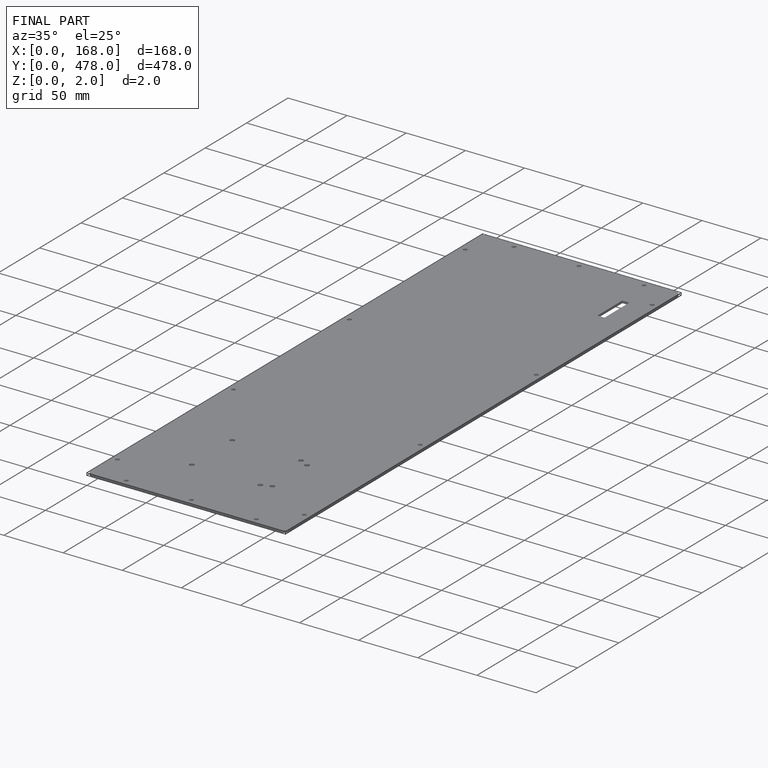
[diagram: finished part — iso view with bounding-box wireframe]
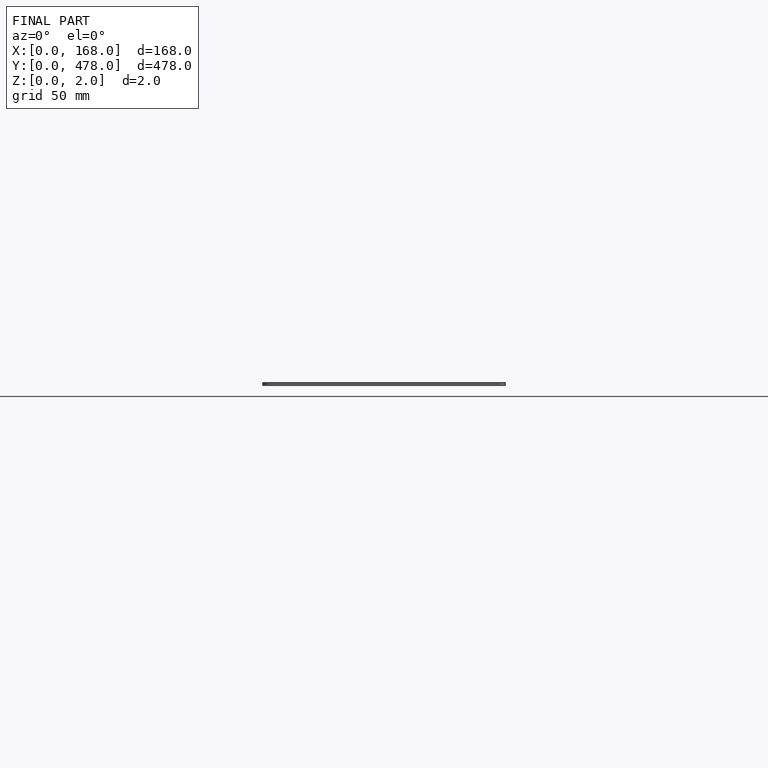
[diagram: finished part — front view with bounding-box wireframe]
